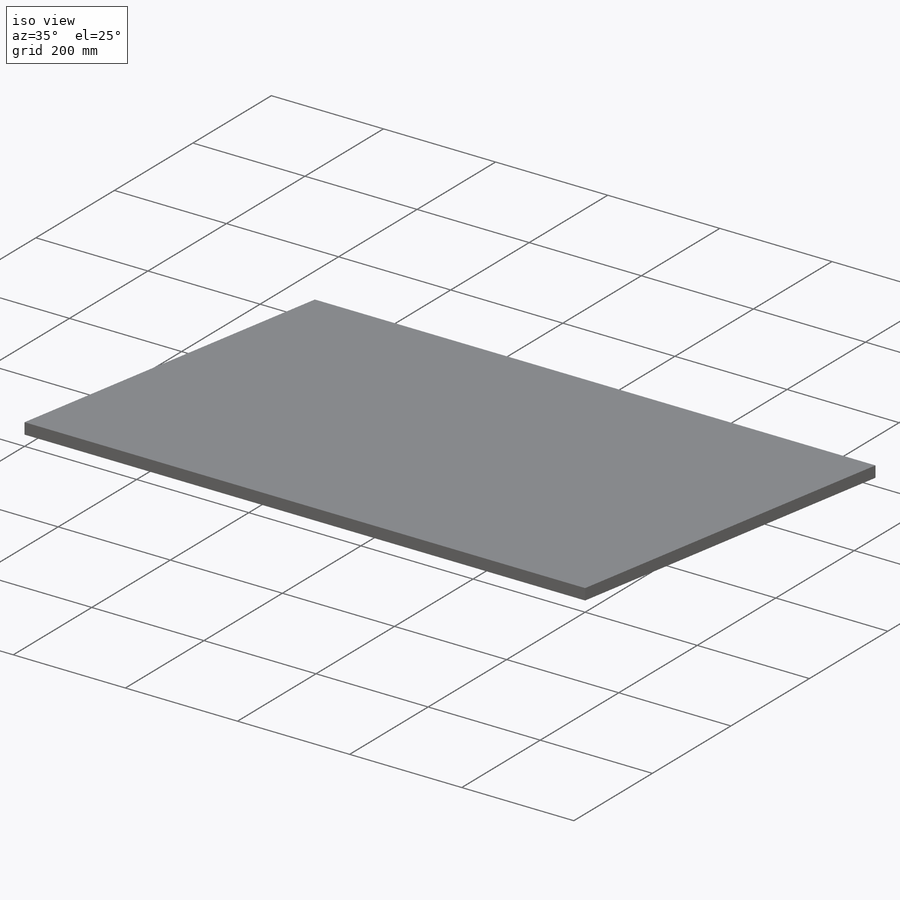
[diagram: iso view]
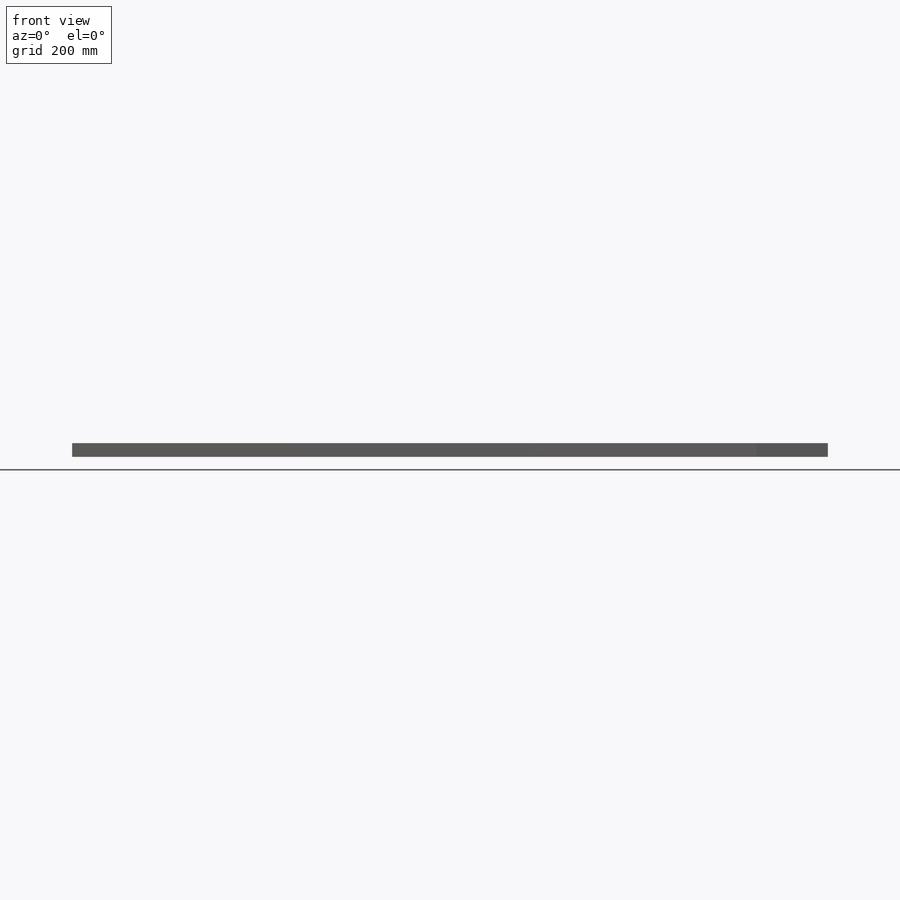
[diagram: front view]
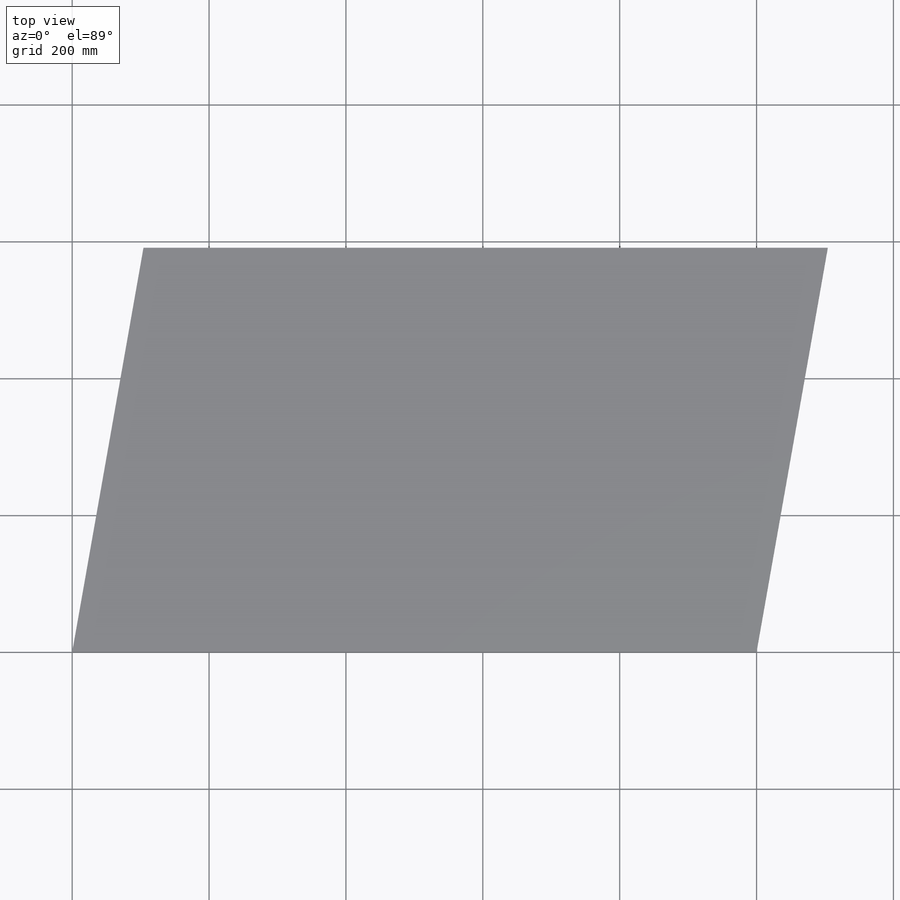
[diagram: top view]
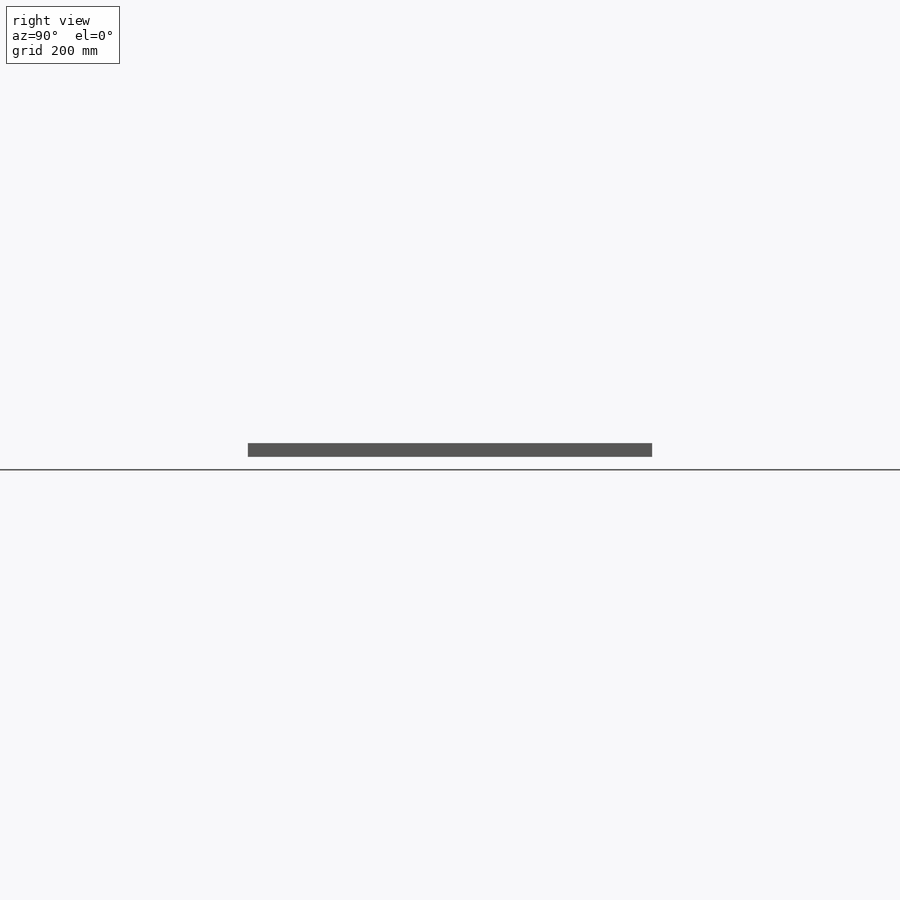
[diagram: right view]
SOLIDWORKS PART (.sldprt)
format: sldprt  version: not decoded by parser v0  size: 601,600 bytes
history: native  units: mm
features: sketch x8, plane x4, sweep x3, fillet x2, chamfer x2, material x1, extrude x1 + 1 further entry (+10 scaffold rows collapsed)
feature tree (32):
  scaffold x10  (default folders/planes/origin — collapsed)
  material  "Material <nicht festgelegt>"
  plane  "Ebene vorne"
  plane  "Ebene oben"
  plane  "Ebene rechts"
  "Tabelle"
  sketch  "Kontur Platte"  dims[c1.Breite=500.0mm c1.Tiefe=600.0mm c1.D1=500.0mm c2.Breite=500.0mm c2.D1=~607.390286mm c2.Breite Hinten=1000.0mm c2.Breite Vorn=1000.0mm c3.D1=600.0mm c3.Winkel=80.0deg]
  extrude  "Platte"  Depth=20mm Staerke=20mm
  fillet  "Ecke Radius"  Radius=1mm R=1mm
  chamfer  "Ecke Fase"  Distance=1mm L=1mm
  plane  "Ebene auf Kante"
  sketch  "Skizze auf Kante"  dims[D1=30.0mm D2=60.0mm]
  sketch  "Skizze Stirn Trichter"  dims[c1.D1=18.0mm c2.D1=~19.082594deg c3.D1=18.0mm c3.Winkel Trichter=1.0deg]
  sketch  "Skizze Umlaufend Trichter"  dims[D1=0.0mm]
  sweep  "Stirn Trichter"
  sketch  "Skizze Stirn Pyramide"  dims[D1=18.0mm Winkel Pyramide=1.0deg]
  sketch  "Skizze Umlaufend Pyramide"  dims[D1=0.0mm]
  sweep  "Kante Pyramide"
  sketch  "Skizze Stirn Woelbung"  dims[Woelbung=1.0mm]
  sketch  "Skizze Umlaufend Woelbung"  dims[D1=0.0mm]
  sweep  "Kante Woelbung"
  fillet  "Kante Umlaufend Radius"  Radius=1mm Radius Umlaufend=1mm
  chamfer  "Kante Umlaufend Fase"  Distance=1mm Fase Umlaufend=1mm
decode coverage: 13 of 16 modeling features carry decoded parameters; 1 rows unclassified (native names shown)
note: ~ marks probable driven/reference dimensions
note: suppression state not decoded; provenance and decode notes live in map.json
